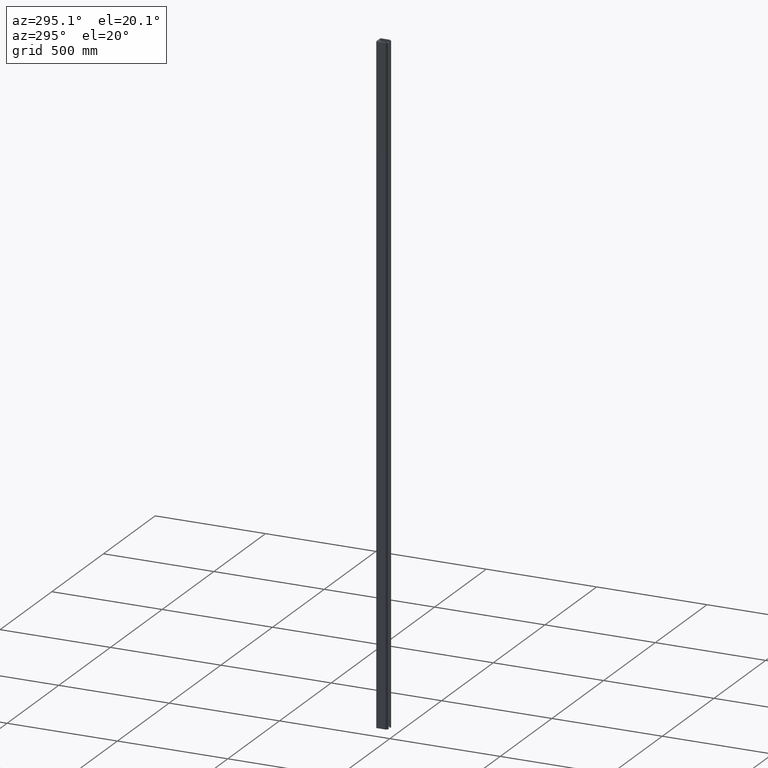
[diagram: clean part render]
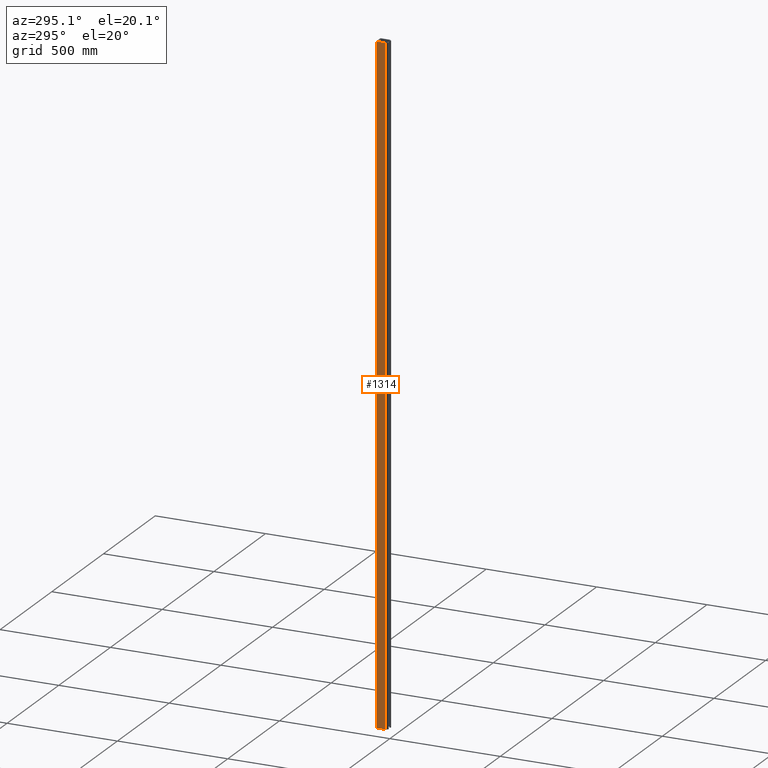
[diagram: same view with one face highlighted and labeled with its STEP entity id]
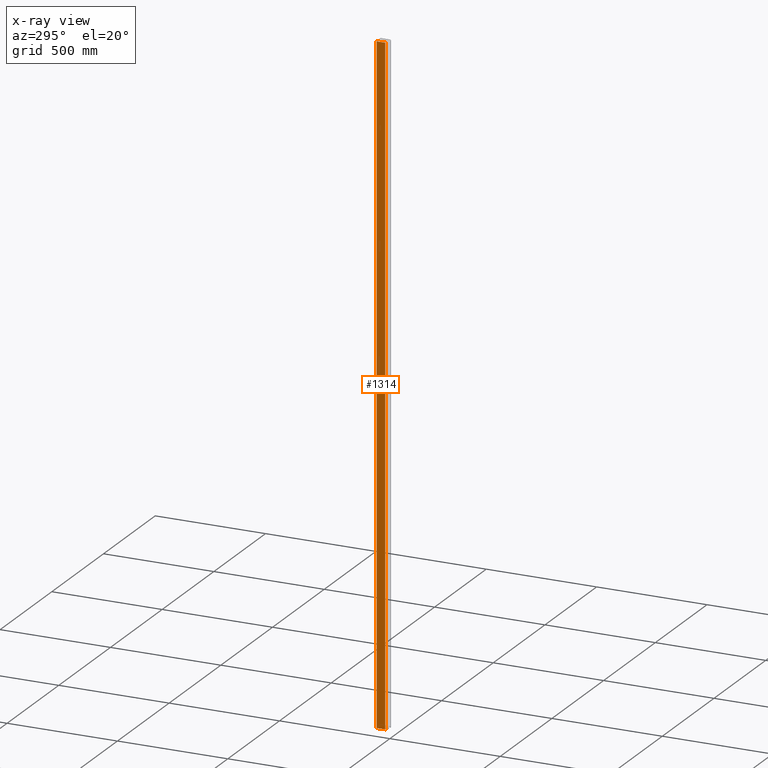
[diagram: x-ray of the same camera — body ghosted, the highlighted face saturated]
A machine part, auxiliary view. The second image highlights one B-rep face of the part: STEP entity #1314.
The next image is the same camera in x-ray: the body ghosted, the highlighted face saturated — about 0% of this face is hidden behind the body in this view.
In plain terms, the highlighted planar face has unit normal (-1, 0, 0).
Its self-contained STEP definition (entity closure, byte-faithful):
#406 = CARTESIAN_POINT ( 'NONE',  ( -21.00000000000000000, 10.96601461306008574, -1500.000000000000000 ) ) ;
#430 = VERTEX_POINT ( 'NONE', #2698 ) ;
#545 = ORIENTED_EDGE ( 'NONE', *, *, #860, .T. ) ;
#673 = VERTEX_POINT ( 'NONE', #12326 ) ;
#860 = EDGE_CURVE ( 'NONE', #430, #2588, #9887, .T. ) ;
#1314 = ADVANCED_FACE ( 'NONE', ( #4069 ), #2735, .T. ) ;
#1730 = LINE ( 'NONE', #4753, #12948 ) ;
#1945 = CARTESIAN_POINT ( 'NONE',  ( -20.99999999999999645, 49.99999999999998579, 1500.000000000000000 ) ) ;
#2588 = VERTEX_POINT ( 'NONE', #11236 ) ;
#2698 = CARTESIAN_POINT ( 'NONE',  ( -21.00000000000000000, 10.96601461306008574, 1500.000000000000000 ) ) ;
#2735 = PLANE ( 'NONE',  #13845 ) ;
#2948 = ORIENTED_EDGE ( 'NONE', *, *, #9208, .F. ) ;
#4069 = FACE_OUTER_BOUND ( 'NONE', #11626, .T. ) ;
#4107 = ORIENTED_EDGE ( 'NONE', *, *, #12639, .F. ) ;
#4345 = LINE ( 'NONE', #9828, #12698 ) ;
#4530 = ORIENTED_EDGE ( 'NONE', *, *, #6873, .T. ) ;
#4753 = CARTESIAN_POINT ( 'NONE',  ( -20.99999999999999645, 49.99999999999998579, 1500.000000000000000 ) ) ;
#4972 = DIRECTION ( 'NONE',  ( -1.000000000000000000, 0.000000000000000000, 0.000000000000000000 ) ) ;
#5861 = DIRECTION ( 'NONE',  ( -0.000000000000000000, -0.000000000000000000, -1.000000000000000000 ) ) ;
#6071 = DIRECTION ( 'NONE',  ( 0.000000000000000000, 0.000000000000000000, 1.000000000000000000 ) ) ;
#6858 = VERTEX_POINT ( 'NONE', #406 ) ;
#6873 = EDGE_CURVE ( 'NONE', #2588, #673, #1730, .T. ) ;
#7580 = DIRECTION ( 'NONE',  ( -0.000000000000000000, -0.000000000000000000, -1.000000000000000000 ) ) ;
#8204 = CARTESIAN_POINT ( 'NONE',  ( -20.99999999999999645, 49.99999999999998579, 1500.000000000000000 ) ) ;
#9208 = EDGE_CURVE ( 'NONE', #6858, #673, #11886, .T. ) ;
#9828 = CARTESIAN_POINT ( 'NONE',  ( -21.00000000000000000, 10.96601461306008574, 1500.000000000000000 ) ) ;
#9887 = LINE ( 'NONE', #1945, #10248 ) ;
#10225 = VECTOR ( 'NONE', #12059, 1000.000000000000000 ) ;
#10248 = VECTOR ( 'NONE', #13973, 1000.000000000000000 ) ;
#11236 = CARTESIAN_POINT ( 'NONE',  ( -20.99999999999999645, 49.99999999999998579, 1500.000000000000000 ) ) ;
#11626 = EDGE_LOOP ( 'NONE', ( #2948, #4107, #545, #4530 ) ) ;
#11886 = LINE ( 'NONE', #13198, #10225 ) ;
#12059 = DIRECTION ( 'NONE',  ( 0.000000000000000000, 1.000000000000000000, 0.000000000000000000 ) ) ;
#12326 = CARTESIAN_POINT ( 'NONE',  ( -20.99999999999999645, 49.99999999999998579, -1500.000000000000000 ) ) ;
#12639 = EDGE_CURVE ( 'NONE', #430, #6858, #4345, .T. ) ;
#12698 = VECTOR ( 'NONE', #7580, 1000.000000000000000 ) ;
#12948 = VECTOR ( 'NONE', #5861, 1000.000000000000000 ) ;
#13198 = CARTESIAN_POINT ( 'NONE',  ( -20.99999999999999645, 49.99999999999998579, -1500.000000000000000 ) ) ;
#13845 = AXIS2_PLACEMENT_3D ( 'NONE', #8204, #4972, #6071 ) ;
#13973 = DIRECTION ( 'NONE',  ( 0.000000000000000000, 1.000000000000000000, 0.000000000000000000 ) ) ;